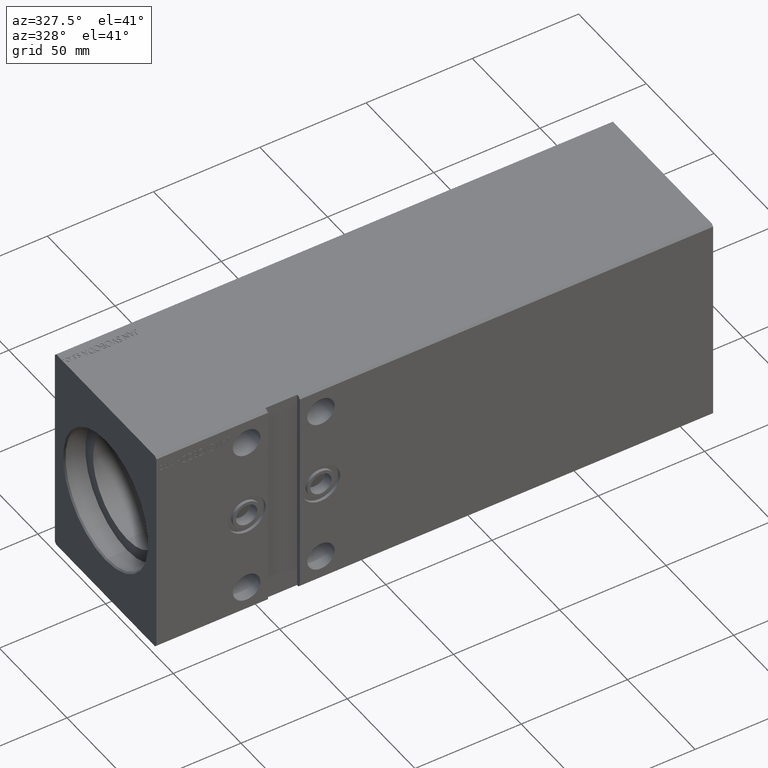
[diagram: clean part render]
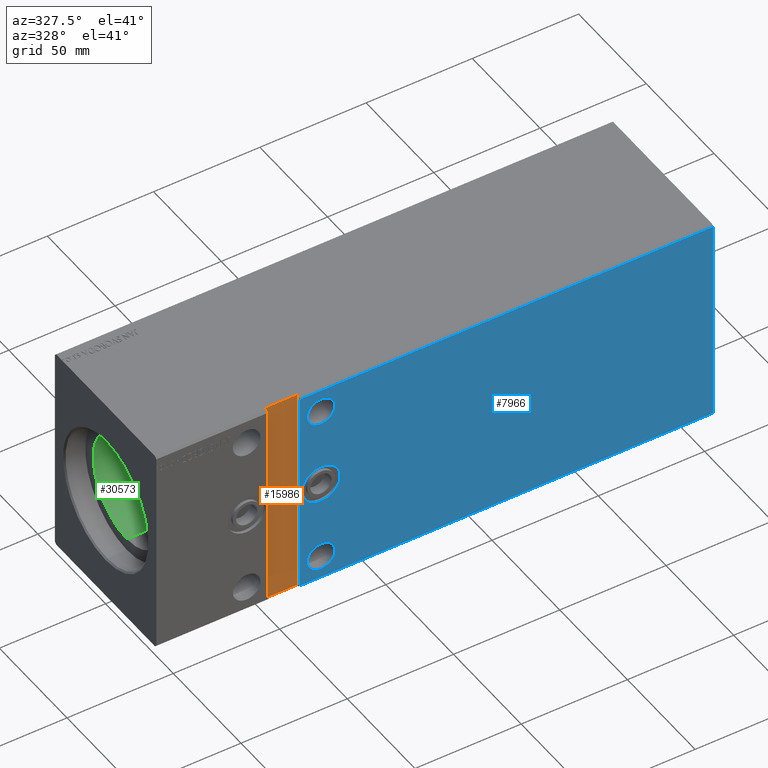
[diagram: same view with three faces highlighted in distinct colors, each labeled with its STEP entity id]
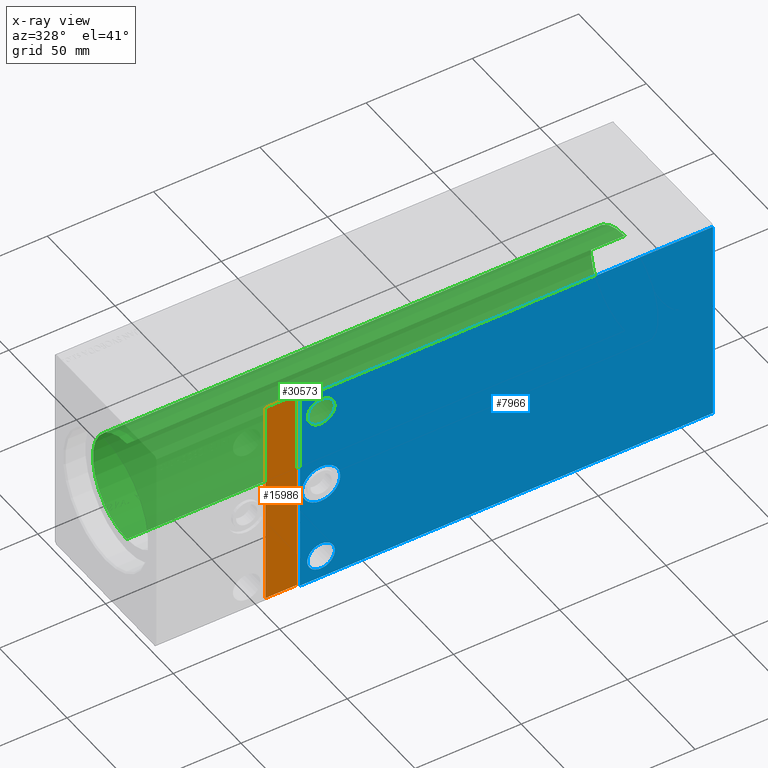
[diagram: x-ray of the same camera — body ghosted, the three highlighted faces saturated]
A machine part, auxiliary view with three faces highlighted in distinct colors.
The next image is the same camera in x-ray (body ghosted, the three faces saturated) — at least one of them is partly hidden behind the body in this view.
Their STEP definitions:

[orange] entity #15986 — the highlighted planar face has unit normal (0, -1, 0).
#2829 = EDGE_CURVE ( 'NONE', #17406, #21284, #33967, .T. ) ;
#6740 = VECTOR ( 'NONE', #11640, 1000.000000000000000 ) ;
#8000 = ORIENTED_EDGE ( 'NONE', *, *, #2829, .T. ) ;
#8291 = VECTOR ( 'NONE', #37055, 1000.000000000000000 ) ;
#9600 = LINE ( 'NONE', #22576, #36081 ) ;
#10286 = CARTESIAN_POINT ( 'NONE',  ( 52.50000000000000711, -35.50000000000001421, -50.00000000000000000 ) ) ;
#10956 = AXIS2_PLACEMENT_3D ( 'NONE', #38888, #22732, #28914 ) ;
#11007 = CARTESIAN_POINT ( 'NONE',  ( 52.50000000000000711, -35.50000000000001421, -50.00000000000000000 ) ) ;
#11640 = DIRECTION ( 'NONE',  ( 1.000000000000000000, 0.000000000000000000, 0.000000000000000000 ) ) ;
#13458 = VECTOR ( 'NONE', #40390, 1000.000000000000000 ) ;
#14931 = EDGE_CURVE ( 'NONE', #18524, #17406, #9600, .T. ) ;
#15986 = ADVANCED_FACE ( 'NONE', ( #16138 ), #25931, .T. ) ;
#16138 = FACE_OUTER_BOUND ( 'NONE', #19145, .T. ) ;
#17406 = VERTEX_POINT ( 'NONE', #10286 ) ;
#17623 = ORIENTED_EDGE ( 'NONE', *, *, #18337, .T. ) ;
#17647 = CARTESIAN_POINT ( 'NONE',  ( 52.49999999999999289, -35.50000000000001421, 49.99999999999998579 ) ) ;
#18337 = EDGE_CURVE ( 'NONE', #21284, #35509, #21337, .T. ) ;
#18524 = VERTEX_POINT ( 'NONE', #25990 ) ;
#19145 = EDGE_LOOP ( 'NONE', ( #17623, #25724, #21513, #8000 ) ) ;
#20494 = CARTESIAN_POINT ( 'NONE',  ( 67.50000000000000000, -35.50000000000001421, 49.99999999999998579 ) ) ;
#21284 = VERTEX_POINT ( 'NONE', #35440 ) ;
#21337 = LINE ( 'NONE', #20494, #8291 ) ;
#21513 = ORIENTED_EDGE ( 'NONE', *, *, #14931, .T. ) ;
#22576 = CARTESIAN_POINT ( 'NONE',  ( 52.49999999999999289, -35.50000000000001421, 49.99999999999998579 ) ) ;
#22732 = DIRECTION ( 'NONE',  ( 0.000000000000000000, -1.000000000000000000, 0.000000000000000000 ) ) ;
#22982 = DIRECTION ( 'NONE',  ( 1.387778780781445922E-16, 0.000000000000000000, -1.000000000000000000 ) ) ;
#25724 = ORIENTED_EDGE ( 'NONE', *, *, #33551, .T. ) ;
#25931 = PLANE ( 'NONE',  #10956 ) ;
#25990 = CARTESIAN_POINT ( 'NONE',  ( 52.49999999999999289, -35.50000000000001421, 49.99999999999998579 ) ) ;
#27436 = LINE ( 'NONE', #17647, #13458 ) ;
#28914 = DIRECTION ( 'NONE',  ( 0.000000000000000000, -0.000000000000000000, -1.000000000000000000 ) ) ;
#33551 = EDGE_CURVE ( 'NONE', #35509, #18524, #27436, .T. ) ;
#33967 = LINE ( 'NONE', #11007, #6740 ) ;
#35440 = CARTESIAN_POINT ( 'NONE',  ( 67.50000000000001421, -35.50000000000001421, -50.00000000000000000 ) ) ;
#35509 = VERTEX_POINT ( 'NONE', #37745 ) ;
#36081 = VECTOR ( 'NONE', #22982, 1000.000000000000000 ) ;
#37055 = DIRECTION ( 'NONE',  ( -1.387778780781445922E-16, -0.000000000000000000, 1.000000000000000000 ) ) ;
#37745 = CARTESIAN_POINT ( 'NONE',  ( 67.50000000000000000, -35.50000000000001421, 49.99999999999998579 ) ) ;
#38888 = CARTESIAN_POINT ( 'NONE',  ( 0.000000000000000000, -35.50000000000001421, 1.101411730778925047E-16 ) ) ;
#40390 = DIRECTION ( 'NONE',  ( -1.000000000000000000, -0.000000000000000000, -0.000000000000000000 ) ) ;

[blue] entity #7966 — the highlighted planar face has unit normal (-0, 1, 0).
#336 = ORIENTED_EDGE ( 'NONE', *, *, #23701, .F. ) ;
#381 = DIRECTION ( 'NONE',  ( 0.000000000000000000, 0.000000000000000000, 1.000000000000000000 ) ) ;
#619 = CIRCLE ( 'NONE', #18289, 6.499999999999999112 ) ;
#761 = DIRECTION ( 'NONE',  ( 0.000000000000000000, 0.000000000000000000, 1.000000000000000000 ) ) ;
#1870 = CARTESIAN_POINT ( 'NONE',  ( 77.50000000000002842, -37.50000000000001421, -2.652630106891487937E-15 ) ) ;
#2381 = PLANE ( 'NONE',  #20399 ) ;
#2456 = VECTOR ( 'NONE', #35009, 1000.000000000000000 ) ;
#3702 = ORIENTED_EDGE ( 'NONE', *, *, #37227, .T. ) ;
#3765 = CARTESIAN_POINT ( 'NONE',  ( 77.50000000000001421, -37.50000000000001421, -38.00000000000000000 ) ) ;
#3940 = CARTESIAN_POINT ( 'NONE',  ( 77.50000000000000000, -37.50000000000001421, 38.00000000000000000 ) ) ;
#4094 = CARTESIAN_POINT ( 'NONE',  ( 262.0000000000000000, -37.50000000000001421, -49.00000000000000000 ) ) ;
#4581 = LINE ( 'NONE', #13539, #9434 ) ;
#5599 = CARTESIAN_POINT ( 'NONE',  ( 77.50000000000000000, -37.50000000000001421, 31.50000000000000000 ) ) ;
#5643 = EDGE_CURVE ( 'NONE', #15219, #39908, #36657, .T. ) ;
#7173 = EDGE_CURVE ( 'NONE', #14214, #10366, #14290, .T. ) ;
#7529 = EDGE_CURVE ( 'NONE', #17265, #40721, #37526, .T. ) ;
#7966 = ADVANCED_FACE ( 'NONE', ( #11546, #31308, #8979, #34296 ), #2381, .F. ) ;
#8020 = ORIENTED_EDGE ( 'NONE', *, *, #35417, .T. ) ;
#8979 = FACE_OUTER_BOUND ( 'NONE', #35333, .T. ) ;
#9434 = VECTOR ( 'NONE', #29690, 1000.000000000000000 ) ;
#10366 = VERTEX_POINT ( 'NONE', #5599 ) ;
#10644 = DIRECTION ( 'NONE',  ( -0.000000000000000000, 1.000000000000000000, 0.000000000000000000 ) ) ;
#10762 = CARTESIAN_POINT ( 'NONE',  ( 262.0000000000000000, -37.50000000000001421, 48.99999999999998579 ) ) ;
#11243 = DIRECTION ( 'NONE',  ( -0.000000000000000000, 1.000000000000000000, 5.507058653894625853E-17 ) ) ;
#11546 = FACE_BOUND ( 'NONE', #37125, .T. ) ;
#13036 = VERTEX_POINT ( 'NONE', #38769 ) ;
#13189 = DIRECTION ( 'NONE',  ( 0.000000000000000000, 0.000000000000000000, 1.000000000000000000 ) ) ;
#13525 = AXIS2_PLACEMENT_3D ( 'NONE', #3765, #29501, #381 ) ;
#13539 = CARTESIAN_POINT ( 'NONE',  ( 262.0000000000000000, -37.50000000000001421, 48.99999999999998579 ) ) ;
#13629 = CARTESIAN_POINT ( 'NONE',  ( 77.50000000000001421, -37.50000000000001421, -38.00000000000000000 ) ) ;
#13745 = VERTEX_POINT ( 'NONE', #26538 ) ;
#13857 = ORIENTED_EDGE ( 'NONE', *, *, #32426, .T. ) ;
#13964 = CARTESIAN_POINT ( 'NONE',  ( 77.50000000000002842, -37.50000000000001421, -2.652630106891487937E-15 ) ) ;
#14214 = VERTEX_POINT ( 'NONE', #41441 ) ;
#14259 = AXIS2_PLACEMENT_3D ( 'NONE', #13964, #17369, #13189 ) ;
#14290 = CIRCLE ( 'NONE', #27872, 6.499999999999999112 ) ;
#14408 = DIRECTION ( 'NONE',  ( 0.000000000000000000, -1.000000000000000000, -0.000000000000000000 ) ) ;
#14845 = DIRECTION ( 'NONE',  ( 0.000000000000000000, 0.000000000000000000, 1.000000000000000000 ) ) ;
#14956 = EDGE_LOOP ( 'NONE', ( #3702, #40898 ) ) ;
#15075 = ORIENTED_EDGE ( 'NONE', *, *, #7529, .F. ) ;
#15219 = VERTEX_POINT ( 'NONE', #26128 ) ;
#15357 = CARTESIAN_POINT ( 'NONE',  ( 262.0000000000000000, -37.50000000000001421, 48.99999999999998579 ) ) ;
#16530 = CARTESIAN_POINT ( 'NONE',  ( 67.50000000000001421, -37.50000000000001421, -48.99999999999997158 ) ) ;
#16997 = VECTOR ( 'NONE', #18804, 1000.000000000000000 ) ;
#17265 = VERTEX_POINT ( 'NONE', #10762 ) ;
#17369 = DIRECTION ( 'NONE',  ( -0.000000000000000000, 1.000000000000000000, 5.507058653894625853E-17 ) ) ;
#17532 = EDGE_LOOP ( 'NONE', ( #21643, #40900 ) ) ;
#18259 = CIRCLE ( 'NONE', #13525, 6.499999999999999112 ) ;
#18289 = AXIS2_PLACEMENT_3D ( 'NONE', #13629, #10644, #26606 ) ;
#18386 = CARTESIAN_POINT ( 'NONE',  ( 262.0000000000000000, -37.50000000000001421, 48.99999999999998579 ) ) ;
#18804 = DIRECTION ( 'NONE',  ( 0.000000000000000000, 0.000000000000000000, -1.000000000000000000 ) ) ;
#18845 = CARTESIAN_POINT ( 'NONE',  ( 67.50000000000000000, -37.50000000000001421, 49.99999999999998579 ) ) ;
#20399 = AXIS2_PLACEMENT_3D ( 'NONE', #15357, #28331, #41288 ) ;
#20810 = ORIENTED_EDGE ( 'NONE', *, *, #5643, .T. ) ;
#20998 = CARTESIAN_POINT ( 'NONE',  ( 77.50000000000000000, -37.50000000000001421, 38.00000000000000000 ) ) ;
#21296 = CIRCLE ( 'NONE', #36215, 8.999999999999996447 ) ;
#21643 = ORIENTED_EDGE ( 'NONE', *, *, #24633, .F. ) ;
#21658 = VERTEX_POINT ( 'NONE', #35694 ) ;
#22281 = ORIENTED_EDGE ( 'NONE', *, *, #24721, .F. ) ;
#23488 = AXIS2_PLACEMENT_3D ( 'NONE', #3940, #35844, #761 ) ;
#23701 = EDGE_CURVE ( 'NONE', #36551, #21658, #29050, .T. ) ;
#24633 = EDGE_CURVE ( 'NONE', #10366, #14214, #33663, .T. ) ;
#24721 = EDGE_CURVE ( 'NONE', #40721, #36551, #37091, .T. ) ;
#26128 = CARTESIAN_POINT ( 'NONE',  ( 77.50000000000002842, -37.50000000000001421, 8.999999999999992895 ) ) ;
#26538 = CARTESIAN_POINT ( 'NONE',  ( 77.50000000000001421, -37.50000000000001421, -31.50000000000000000 ) ) ;
#26606 = DIRECTION ( 'NONE',  ( 0.000000000000000000, 0.000000000000000000, 1.000000000000000000 ) ) ;
#27872 = AXIS2_PLACEMENT_3D ( 'NONE', #20998, #14408, #40340 ) ;
#28331 = DIRECTION ( 'NONE',  ( -0.000000000000000000, 1.000000000000000000, 0.000000000000000000 ) ) ;
#29050 = LINE ( 'NONE', #18845, #2456 ) ;
#29501 = DIRECTION ( 'NONE',  ( -0.000000000000000000, 1.000000000000000000, 0.000000000000000000 ) ) ;
#29690 = DIRECTION ( 'NONE',  ( -1.000000000000000000, -0.000000000000000000, -0.000000000000000000 ) ) ;
#30952 = VECTOR ( 'NONE', #31138, 1000.000000000000000 ) ;
#31138 = DIRECTION ( 'NONE',  ( -1.000000000000000000, -0.000000000000000000, -0.000000000000000000 ) ) ;
#31308 = FACE_BOUND ( 'NONE', #14956, .T. ) ;
#32426 = EDGE_CURVE ( 'NONE', #39908, #15219, #21296, .T. ) ;
#33663 = CIRCLE ( 'NONE', #23488, 6.499999999999999112 ) ;
#34148 = CARTESIAN_POINT ( 'NONE',  ( 77.50000000000002842, -37.50000000000001421, -9.000000000000000000 ) ) ;
#34296 = FACE_BOUND ( 'NONE', #17532, .T. ) ;
#35009 = DIRECTION ( 'NONE',  ( -1.387778780781445922E-16, -0.000000000000000000, 1.000000000000000000 ) ) ;
#35333 = EDGE_LOOP ( 'NONE', ( #8020, #336, #22281, #15075 ) ) ;
#35417 = EDGE_CURVE ( 'NONE', #17265, #21658, #4581, .T. ) ;
#35694 = CARTESIAN_POINT ( 'NONE',  ( 67.50000000000000000, -37.50000000000001421, 48.99999999999998579 ) ) ;
#35844 = DIRECTION ( 'NONE',  ( 0.000000000000000000, -1.000000000000000000, -0.000000000000000000 ) ) ;
#36215 = AXIS2_PLACEMENT_3D ( 'NONE', #1870, #11243, #14845 ) ;
#36551 = VERTEX_POINT ( 'NONE', #16530 ) ;
#36657 = CIRCLE ( 'NONE', #14259, 8.999999999999996447 ) ;
#37091 = LINE ( 'NONE', #37524, #30952 ) ;
#37125 = EDGE_LOOP ( 'NONE', ( #13857, #20810 ) ) ;
#37227 = EDGE_CURVE ( 'NONE', #13036, #13745, #18259, .T. ) ;
#37524 = CARTESIAN_POINT ( 'NONE',  ( 262.0000000000000000, -37.50000000000001421, -49.00000000000000000 ) ) ;
#37526 = LINE ( 'NONE', #18386, #16997 ) ;
#38769 = CARTESIAN_POINT ( 'NONE',  ( 77.50000000000001421, -37.50000000000001421, -44.50000000000000000 ) ) ;
#39908 = VERTEX_POINT ( 'NONE', #34148 ) ;
#40340 = DIRECTION ( 'NONE',  ( 0.000000000000000000, 0.000000000000000000, 1.000000000000000000 ) ) ;
#40721 = VERTEX_POINT ( 'NONE', #4094 ) ;
#40898 = ORIENTED_EDGE ( 'NONE', *, *, #42001, .T. ) ;
#40900 = ORIENTED_EDGE ( 'NONE', *, *, #7173, .F. ) ;
#41288 = DIRECTION ( 'NONE',  ( 0.000000000000000000, -0.000000000000000000, 1.000000000000000000 ) ) ;
#41441 = CARTESIAN_POINT ( 'NONE',  ( 77.50000000000000000, -37.50000000000001421, 44.50000000000000000 ) ) ;
#42001 = EDGE_CURVE ( 'NONE', #13745, #13036, #619, .T. ) ;

[green] entity #30573 — the highlighted cylindrical surface (partial cylindrical patch) has radius 25 mm, axis along (-1, -0, -0).
#83 = CARTESIAN_POINT ( 'NONE',  ( 244.1999999999999886, 0.000000000000000000, 0.000000000000000000 ) ) ;
#1625 = EDGE_CURVE ( 'NONE', #12699, #33002, #6590, .T. ) ;
#2382 = CARTESIAN_POINT ( 'NONE',  ( 244.1999999999999886, 0.000000000000000000, 25.00000000000000000 ) ) ;
#5378 = VECTOR ( 'NONE', #14941, 1000.000000000000000 ) ;
#5987 = CYLINDRICAL_SURFACE ( 'NONE', #16838, 25.00000000000000000 ) ;
#6202 = CARTESIAN_POINT ( 'NONE',  ( 244.1999999999999886, 0.000000000000000000, 0.000000000000000000 ) ) ;
#6590 = LINE ( 'NONE', #19560, #25714 ) ;
#8062 = ORIENTED_EDGE ( 'NONE', *, *, #36188, .T. ) ;
#9840 = DIRECTION ( 'NONE',  ( 0.000000000000000000, 0.000000000000000000, 1.000000000000000000 ) ) ;
#11547 = LINE ( 'NONE', #2382, #5378 ) ;
#12699 = VERTEX_POINT ( 'NONE', #31911 ) ;
#13043 = DIRECTION ( 'NONE',  ( -1.000000000000000000, 0.000000000000000000, 0.000000000000000000 ) ) ;
#14490 = EDGE_LOOP ( 'NONE', ( #17855, #22914, #25846, #8062 ) ) ;
#14941 = DIRECTION ( 'NONE',  ( -1.000000000000000000, -0.000000000000000000, -0.000000000000000000 ) ) ;
#16838 = AXIS2_PLACEMENT_3D ( 'NONE', #6202, #18964, #24921 ) ;
#17855 = ORIENTED_EDGE ( 'NONE', *, *, #1625, .F. ) ;
#18964 = DIRECTION ( 'NONE',  ( -1.000000000000000000, -0.000000000000000000, -0.000000000000000000 ) ) ;
#19148 = DIRECTION ( 'NONE',  ( -1.000000000000000000, 0.000000000000000000, 0.000000000000000000 ) ) ;
#19560 = CARTESIAN_POINT ( 'NONE',  ( 244.1999999999999886, 3.061616997868382254E-15, -25.00000000000000000 ) ) ;
#19626 = CIRCLE ( 'NONE', #38627, 25.00000000000000000 ) ;
#21500 = AXIS2_PLACEMENT_3D ( 'NONE', #83, #13043, #9840 ) ;
#22166 = CIRCLE ( 'NONE', #21500, 25.00000000000000000 ) ;
#22338 = CARTESIAN_POINT ( 'NONE',  ( 10.00000000000000888, 0.000000000000000000, 0.000000000000000000 ) ) ;
#22914 = ORIENTED_EDGE ( 'NONE', *, *, #23239, .F. ) ;
#23239 = EDGE_CURVE ( 'NONE', #23745, #12699, #22166, .T. ) ;
#23745 = VERTEX_POINT ( 'NONE', #35222 ) ;
#24921 = DIRECTION ( 'NONE',  ( 0.000000000000000000, 0.000000000000000000, 1.000000000000000000 ) ) ;
#25714 = VECTOR ( 'NONE', #28737, 1000.000000000000000 ) ;
#25846 = ORIENTED_EDGE ( 'NONE', *, *, #41812, .T. ) ;
#28716 = VERTEX_POINT ( 'NONE', #30838 ) ;
#28737 = DIRECTION ( 'NONE',  ( -1.000000000000000000, -0.000000000000000000, -0.000000000000000000 ) ) ;
#30573 = ADVANCED_FACE ( 'NONE', ( #41502 ), #5987, .F. ) ;
#30838 = CARTESIAN_POINT ( 'NONE',  ( 10.00000000000000888, 0.000000000000000000, 25.00000000000000000 ) ) ;
#31911 = CARTESIAN_POINT ( 'NONE',  ( 244.1999999999999886, 3.061616997868382254E-15, -25.00000000000000000 ) ) ;
#33002 = VERTEX_POINT ( 'NONE', #37083 ) ;
#35222 = CARTESIAN_POINT ( 'NONE',  ( 244.1999999999999886, 0.000000000000000000, 25.00000000000000000 ) ) ;
#36188 = EDGE_CURVE ( 'NONE', #28716, #33002, #19626, .T. ) ;
#37083 = CARTESIAN_POINT ( 'NONE',  ( 10.00000000000000888, 3.061616997868382254E-15, -25.00000000000000000 ) ) ;
#37858 = DIRECTION ( 'NONE',  ( 0.000000000000000000, 0.000000000000000000, 1.000000000000000000 ) ) ;
#38627 = AXIS2_PLACEMENT_3D ( 'NONE', #22338, #19148, #37858 ) ;
#41502 = FACE_OUTER_BOUND ( 'NONE', #14490, .T. ) ;
#41812 = EDGE_CURVE ( 'NONE', #23745, #28716, #11547, .T. ) ;